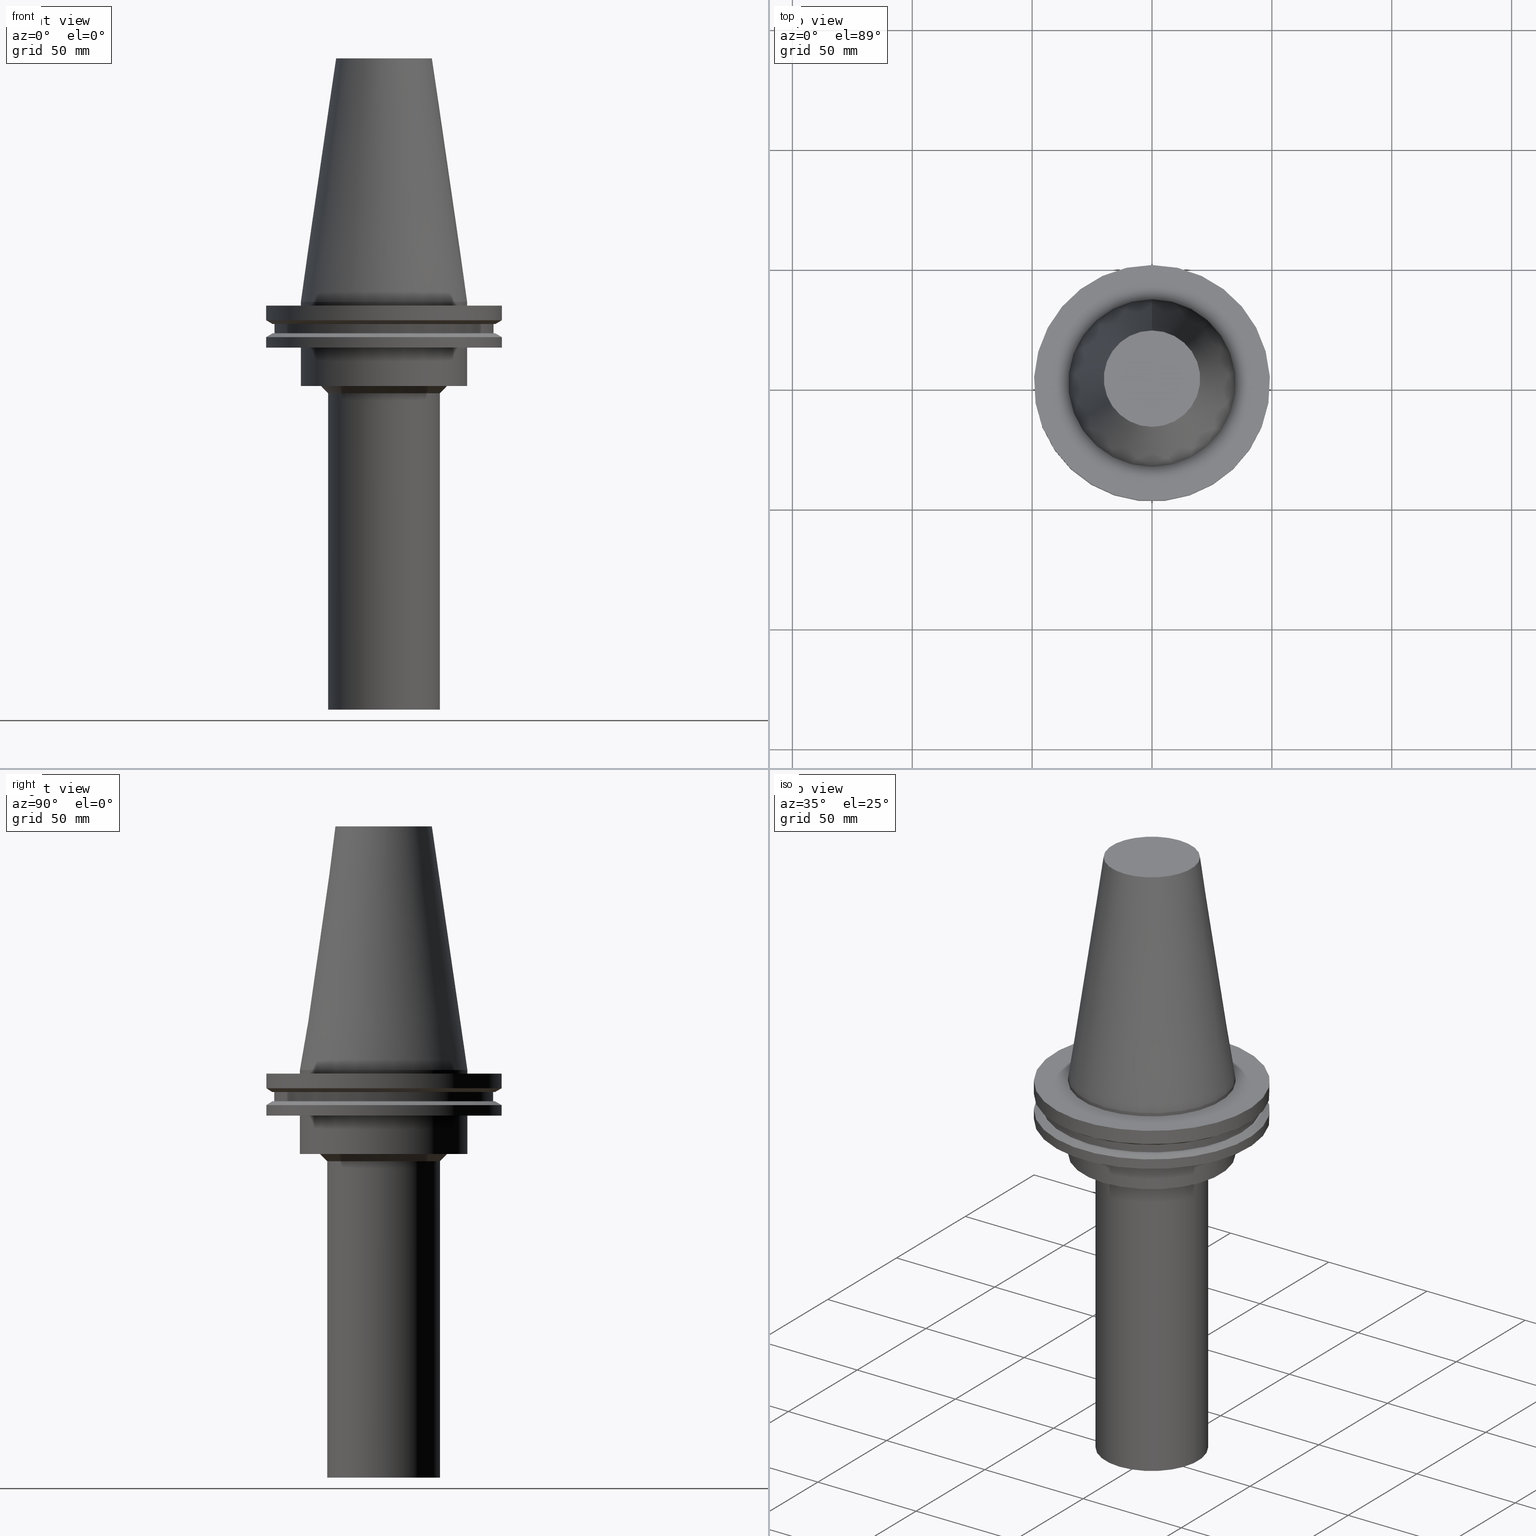
[diagram: canonical four-view strip — front | top / right | iso, engineering-drawing reading convention]
A machine part, canonical four-view strip (front | top / right | iso — engineering-drawing reading convention). The complete STEP part file that produces these views, byte-faithful:
ISO-10303-21;
HEADER;
FILE_DESCRIPTION((''),'1');
FILE_NAME('V:/90_\X2\53D65F9730C730FC30BF\X0\/00_\X2\6DE18DEF30C730FC30BF\X0\/ALL/BCV-BKUS\X2\FF76FF80FF9BFF78FF9E752852A05DE556F3\X0\201801/BCV50-SDF/BCV50-SDF36-47-170.stp','2018-02-01T01:11:27',(''),(''),'Spatial Interop R21 SP3','Kubotek KeyCreator 2011 V10.0.2 (22737)',' ');
FILE_SCHEMA(('automotive_design'));
ENDSEC;
DATA;
#1=MECHANICAL_DESIGN_GEOMETRIC_PRESENTATION_REPRESENTATION(' ',(#10,#11,#12,#13,#14,#15,#16,#17,#18,#19,#20,#21,#22,#23,#24,#25,#26,#27,#28,#29,#30,#31,#32,#33,#34,#35,#36,#37,#38,#39,#40,#41,#42,#43),#6);
#2=PRODUCT_DEFINITION_CONTEXT('',#44,'design');
#3=APPLICATION_PROTOCOL_DEFINITION('INTERNATIONAL STANDARD','automotive_design',1994,#44);
#4=PRODUCT_CATEGORY_RELATIONSHIP('NONE','NONE',#45,#46);
#5=SHAPE_DEFINITION_REPRESENTATION(#47,#48);
#6= (GEOMETRIC_REPRESENTATION_CONTEXT(3)GLOBAL_UNCERTAINTY_ASSIGNED_CONTEXT((#51))GLOBAL_UNIT_ASSIGNED_CONTEXT((#53,#54,#55))REPRESENTATION_CONTEXT('NONE','WORKSPACE'));
#10=STYLED_ITEM('',(#57,#58),#59);
#11=STYLED_ITEM('',(#60,#61),#62);
#12=STYLED_ITEM('',(#63,#64),#65);
#13=STYLED_ITEM('',(#66,#67),#68);
#14=STYLED_ITEM('',(#69),#70);
#15=STYLED_ITEM('',(#71),#72);
#16=STYLED_ITEM('',(#73),#74);
#17=STYLED_ITEM('',(#75,#76),#77);
#18=STYLED_ITEM('',(#78,#79),#80);
#19=STYLED_ITEM('',(#81,#82),#83);
#20=STYLED_ITEM('',(#84,#85),#86);
#21=STYLED_ITEM('',(#87),#88);
#22=STYLED_ITEM('',(#89,#90),#91);
#23=STYLED_ITEM('',(#92),#93);
#24=STYLED_ITEM('',(#94,#95),#96);
#25=STYLED_ITEM('',(#97),#98);
#26=STYLED_ITEM('',(#99,#100),#101);
#27=STYLED_ITEM('',(#102),#103);
#28=STYLED_ITEM('',(#104),#105);
#29=STYLED_ITEM('',(#106),#107);
#30=STYLED_ITEM('',(#108),#109);
#31=STYLED_ITEM('',(#110),#111);
#32=STYLED_ITEM('',(#112,#113),#114);
#33=STYLED_ITEM('',(#115),#116);
#34=STYLED_ITEM('',(#117),#118);
#35=STYLED_ITEM('',(#119,#120),#121);
#36=STYLED_ITEM('',(#122),#123);
#37=STYLED_ITEM('',(#124,#125),#126);
#38=STYLED_ITEM('',(#127,#128),#129);
#39=STYLED_ITEM('',(#130,#131),#132);
#40=STYLED_ITEM('',(#133,#134),#135);
#41=STYLED_ITEM('',(#136,#137),#138);
#42=STYLED_ITEM('',(#139),#140);
#43=STYLED_ITEM('',(#141),#142);
#44=APPLICATION_CONTEXT(' ');
#45=PRODUCT_CATEGORY('part','NONE');
#46=PRODUCT_RELATED_PRODUCT_CATEGORY('detail',' ',(#143));
#47=PRODUCT_DEFINITION_SHAPE('NONE','NONE',#144);
#48=ADVANCED_BREP_SHAPE_REPRESENTATION('Unnamed[1]',(#80,#145),#6);
#51=UNCERTAINTY_MEASURE_WITH_UNIT(LENGTH_MEASURE(1.0E-006),#53,'','');
#53= (CONVERSION_BASED_UNIT('MILLIMETRE',#148)LENGTH_UNIT()NAMED_UNIT(#151));
#54= (NAMED_UNIT(#153)PLANE_ANGLE_UNIT()SI_UNIT($,.RADIAN.));
#55= (NAMED_UNIT(#153)SOLID_ANGLE_UNIT()SI_UNIT($,.STERADIAN.));
#57=PRESENTATION_STYLE_ASSIGNMENT((#159));
#58=PRESENTATION_STYLE_ASSIGNMENT((#160));
#59=ADVANCED_FACE('Unnamed[1]',(#161,#162),#163,.T.);
#60=PRESENTATION_STYLE_ASSIGNMENT((#164));
#61=PRESENTATION_STYLE_ASSIGNMENT((#165));
#62=ADVANCED_FACE('Unnamed[1]',(#166,#167),#168,.T.);
#63=PRESENTATION_STYLE_ASSIGNMENT((#169));
#64=PRESENTATION_STYLE_ASSIGNMENT((#170));
#65=ADVANCED_FACE('Unnamed[1]',(#171,#172),#173,.T.);
#66=PRESENTATION_STYLE_ASSIGNMENT((#174));
#67=PRESENTATION_STYLE_ASSIGNMENT((#175));
#68=ADVANCED_FACE('Unnamed[1]',(#176,#177),#178,.T.);
#69=PRESENTATION_STYLE_ASSIGNMENT((#179));
#70=EDGE_CURVE('Unnamed[1]',#180,#180,#181,.T.);
#71=PRESENTATION_STYLE_ASSIGNMENT((#182));
#72=EDGE_CURVE('Unnamed[1]',#183,#183,#184,.T.);
#73=PRESENTATION_STYLE_ASSIGNMENT((#185));
#74=EDGE_CURVE('Unnamed[1]',#186,#186,#187,.T.);
#75=PRESENTATION_STYLE_ASSIGNMENT((#188));
#76=PRESENTATION_STYLE_ASSIGNMENT((#189));
#77=ADVANCED_FACE('Unnamed[1]',(#190,#191),#192,.T.);
#78=PRESENTATION_STYLE_ASSIGNMENT((#193));
#79=PRESENTATION_STYLE_ASSIGNMENT((#194));
#80=MANIFOLD_SOLID_BREP('Unnamed[1]',#195);
#81=PRESENTATION_STYLE_ASSIGNMENT((#196));
#82=PRESENTATION_STYLE_ASSIGNMENT((#197));
#83=ADVANCED_FACE('Unnamed[1]',(#198),#199,.T.);
#84=PRESENTATION_STYLE_ASSIGNMENT((#200));
#85=PRESENTATION_STYLE_ASSIGNMENT((#201));
#86=ADVANCED_FACE('Unnamed[1]',(#202,#203),#204,.T.);
#87=PRESENTATION_STYLE_ASSIGNMENT((#205));
#88=EDGE_CURVE('Unnamed[1]',#206,#206,#207,.T.);
#89=PRESENTATION_STYLE_ASSIGNMENT((#208));
#90=PRESENTATION_STYLE_ASSIGNMENT((#209));
#91=ADVANCED_FACE('Unnamed[1]',(#210,#211),#212,.T.);
#92=PRESENTATION_STYLE_ASSIGNMENT((#213));
#93=EDGE_CURVE('Unnamed[1]',#214,#214,#215,.T.);
#94=PRESENTATION_STYLE_ASSIGNMENT((#216));
#95=PRESENTATION_STYLE_ASSIGNMENT((#217));
#96=ADVANCED_FACE('Unnamed[1]',(#218,#219),#220,.T.);
#97=PRESENTATION_STYLE_ASSIGNMENT((#221));
#98=EDGE_CURVE('Unnamed[1]',#222,#222,#223,.T.);
#99=PRESENTATION_STYLE_ASSIGNMENT((#224));
#100=PRESENTATION_STYLE_ASSIGNMENT((#225));
#101=ADVANCED_FACE('Unnamed[1]',(#226,#227),#228,.T.);
#102=PRESENTATION_STYLE_ASSIGNMENT((#229));
#103=EDGE_CURVE('Unnamed[1]',#230,#230,#231,.T.);
#104=PRESENTATION_STYLE_ASSIGNMENT((#232));
#105=EDGE_CURVE('Unnamed[1]',#233,#233,#234,.T.);
#106=PRESENTATION_STYLE_ASSIGNMENT((#235));
#107=EDGE_CURVE('Unnamed[1]',#236,#236,#237,.T.);
#108=PRESENTATION_STYLE_ASSIGNMENT((#238));
#109=EDGE_CURVE('Unnamed[1]',#239,#239,#240,.T.);
#110=PRESENTATION_STYLE_ASSIGNMENT((#241));
#111=EDGE_CURVE('Unnamed[1]',#242,#242,#243,.T.);
#112=PRESENTATION_STYLE_ASSIGNMENT((#244));
#113=PRESENTATION_STYLE_ASSIGNMENT((#245));
#114=ADVANCED_FACE('Unnamed[1]',(#246,#247),#248,.T.);
#115=PRESENTATION_STYLE_ASSIGNMENT((#249));
#116=EDGE_CURVE('Unnamed[1]',#250,#250,#251,.T.);
#117=PRESENTATION_STYLE_ASSIGNMENT((#252));
#118=EDGE_CURVE('Unnamed[1]',#253,#253,#254,.T.);
#119=PRESENTATION_STYLE_ASSIGNMENT((#255));
#120=PRESENTATION_STYLE_ASSIGNMENT((#256));
#121=ADVANCED_FACE('Unnamed[1]',(#257,#258),#259,.T.);
#122=PRESENTATION_STYLE_ASSIGNMENT((#260));
#123=EDGE_CURVE('Unnamed[1]',#261,#261,#262,.T.);
#124=PRESENTATION_STYLE_ASSIGNMENT((#263));
#125=PRESENTATION_STYLE_ASSIGNMENT((#264));
#126=ADVANCED_FACE('Unnamed[1]',(#265),#266,.T.);
#127=PRESENTATION_STYLE_ASSIGNMENT((#267));
#128=PRESENTATION_STYLE_ASSIGNMENT((#268));
#129=ADVANCED_FACE('Unnamed[1]',(#269,#270),#271,.T.);
#130=PRESENTATION_STYLE_ASSIGNMENT((#272));
#131=PRESENTATION_STYLE_ASSIGNMENT((#273));
#132=ADVANCED_FACE('Unnamed[1]',(#274,#275),#276,.T.);
#133=PRESENTATION_STYLE_ASSIGNMENT((#277));
#134=PRESENTATION_STYLE_ASSIGNMENT((#278));
#135=ADVANCED_FACE('Unnamed[1]',(#279,#280),#281,.T.);
#136=PRESENTATION_STYLE_ASSIGNMENT((#282));
#137=PRESENTATION_STYLE_ASSIGNMENT((#283));
#138=ADVANCED_FACE('Unnamed[1]',(#284,#285),#286,.T.);
#139=PRESENTATION_STYLE_ASSIGNMENT((#287));
#140=EDGE_CURVE('Unnamed[1]',#288,#288,#289,.T.);
#141=PRESENTATION_STYLE_ASSIGNMENT((#290));
#142=EDGE_CURVE('Unnamed[1]',#291,#291,#292,.T.);
#143=PRODUCT('Unnamed[1]','Unnamed[1]','PART-Unnamed[1]-DESC',(#293));
#144=PRODUCT_DEFINITION('NONE','NONE',#294,#2);
#145=AXIS2_PLACEMENT_3D('',#295,#296,#297);
#148=LENGTH_MEASURE_WITH_UNIT(LENGTH_MEASURE(1.0),#298);
#151=DIMENSIONAL_EXPONENTS(1.0,0.0,0.0,0.0,0.0,0.0,0.0);
#153=DIMENSIONAL_EXPONENTS(0.0,0.0,0.0,0.0,0.0,0.0,0.0);
#159=SURFACE_STYLE_USAGE(.BOTH.,#299);
#160=CURVE_STYLE('',#300,POSITIVE_LENGTH_MEASURE(1000.0),#301);
#161=FACE_BOUND('',#302,.T.);
#162=FACE_BOUND('',#303,.T.);
#163=CONICAL_SURFACE('',#304,27.5166666666667,0.144812498238939);
#164=SURFACE_STYLE_USAGE(.BOTH.,#305);
#165=CURVE_STYLE('',#306,POSITIVE_LENGTH_MEASURE(1000.0),#307);
#166=FACE_BOUND('',#308,.T.);
#167=FACE_BOUND('',#309,.T.);
#168=CYLINDRICAL_SURFACE('',#310,49.2125);
#169=SURFACE_STYLE_USAGE(.BOTH.,#311);
#170=CURVE_STYLE('',#312,POSITIVE_LENGTH_MEASURE(1000.0),#313);
#171=FACE_OUTER_BOUND('',#314,.T.);
#172=FACE_BOUND('',#315,.T.);
#173=PLANE('',#316);
#174=SURFACE_STYLE_USAGE(.BOTH.,#317);
#175=CURVE_STYLE('',#318,POSITIVE_LENGTH_MEASURE(1000.0),#319);
#176=FACE_BOUND('',#320,.T.);
#177=FACE_BOUND('',#321,.T.);
#178=CYLINDRICAL_SURFACE('',#322,49.2124999999999);
#179=CURVE_STYLE('',#323,POSITIVE_LENGTH_MEASURE(1000.0),#324);
#180=VERTEX_POINT('',#325);
#181=CIRCLE('',#326,20.1083333333333);
#182=CURVE_STYLE('',#327,POSITIVE_LENGTH_MEASURE(1000.0),#328);
#183=VERTEX_POINT('',#329);
#184=CIRCLE('',#330,49.2125000000001);
#185=CURVE_STYLE('',#331,POSITIVE_LENGTH_MEASURE(1000.0),#332);
#186=VERTEX_POINT('',#333);
#187=CIRCLE('',#334,34.925);
#188=SURFACE_STYLE_USAGE(.BOTH.,#335);
#189=CURVE_STYLE('',#336,POSITIVE_LENGTH_MEASURE(1000.0),#337);
#190=FACE_BOUND('',#338,.T.);
#191=FACE_OUTER_BOUND('',#339,.T.);
#192=PLANE('',#340);
#193=SURFACE_STYLE_USAGE(.BOTH.,#341);
#194=CURVE_STYLE('',#342,POSITIVE_LENGTH_MEASURE(1000.0),#343);
#195=CLOSED_SHELL('',(#126,#59,#135,#114,#62,#91,#77,#101,#65,#96,#68,#129,#138,#132,#86,#121,#83));
#196=SURFACE_STYLE_USAGE(.BOTH.,#344);
#197=CURVE_STYLE('',#345,POSITIVE_LENGTH_MEASURE(1000.0),#346);
#198=FACE_OUTER_BOUND('',#347,.T.);
#199=PLANE('',#348);
#200=SURFACE_STYLE_USAGE(.BOTH.,#349);
#201=CURVE_STYLE('',#350,POSITIVE_LENGTH_MEASURE(1000.0),#351);
#202=FACE_BOUND('',#352,.T.);
#203=FACE_BOUND('',#353,.T.);
#204=CONICAL_SURFACE('',#354,25.0,0.78539816339745);
#205=CURVE_STYLE('',#355,POSITIVE_LENGTH_MEASURE(1000.0),#356);
#206=VERTEX_POINT('',#357);
#207=CIRCLE('',#358,49.2124999999999);
#208=SURFACE_STYLE_USAGE(.BOTH.,#359);
#209=CURVE_STYLE('',#360,POSITIVE_LENGTH_MEASURE(1000.0),#361);
#210=FACE_BOUND('',#362,.T.);
#211=FACE_BOUND('',#363,.T.);
#212=CONICAL_SURFACE('',#364,47.822529226926,1.04719755119663);
#213=CURVE_STYLE('',#365,POSITIVE_LENGTH_MEASURE(1000.0),#366);
#214=VERTEX_POINT('',#367);
#215=CIRCLE('',#368,46.432558453852);
#216=SURFACE_STYLE_USAGE(.BOTH.,#369);
#217=CURVE_STYLE('',#370,POSITIVE_LENGTH_MEASURE(1000.0),#371);
#218=FACE_BOUND('',#372,.T.);
#219=FACE_BOUND('',#373,.T.);
#220=CONICAL_SURFACE('',#374,47.8225292269259,1.04719755119659);
#221=CURVE_STYLE('',#375,POSITIVE_LENGTH_MEASURE(1000.0),#376);
#222=VERTEX_POINT('',#377);
#223=CIRCLE('',#378,34.925);
#224=SURFACE_STYLE_USAGE(.BOTH.,#379);
#225=CURVE_STYLE('',#380,POSITIVE_LENGTH_MEASURE(1000.0),#381);
#226=FACE_BOUND('',#382,.T.);
#227=FACE_BOUND('',#383,.T.);
#228=CYLINDRICAL_SURFACE('',#384,45.6449999999999);
#229=CURVE_STYLE('',#385,POSITIVE_LENGTH_MEASURE(1000.0),#386);
#230=VERTEX_POINT('',#387);
#231=CIRCLE('',#388,49.2124999999999);
#232=CURVE_STYLE('',#389,POSITIVE_LENGTH_MEASURE(1000.0),#390);
#233=VERTEX_POINT('',#391);
#234=CIRCLE('',#392,49.2124999999999);
#235=CURVE_STYLE('',#393,POSITIVE_LENGTH_MEASURE(1000.0),#394);
#236=VERTEX_POINT('',#395);
#237=CIRCLE('',#396,46.4325584538519);
#238=CURVE_STYLE('',#397,POSITIVE_LENGTH_MEASURE(1000.0),#398);
#239=VERTEX_POINT('',#399);
#240=CIRCLE('',#400,34.925);
#241=CURVE_STYLE('',#401,POSITIVE_LENGTH_MEASURE(1000.0),#402);
#242=VERTEX_POINT('',#403);
#243=CIRCLE('',#404,34.925);
#244=SURFACE_STYLE_USAGE(.BOTH.,#405);
#245=CURVE_STYLE('',#406,POSITIVE_LENGTH_MEASURE(1000.0),#407);
#246=FACE_OUTER_BOUND('',#408,.T.);
#247=FACE_BOUND('',#409,.T.);
#248=PLANE('',#410);
#249=CURVE_STYLE('',#411,POSITIVE_LENGTH_MEASURE(1000.0),#412);
#250=VERTEX_POINT('',#413);
#251=CIRCLE('',#414,45.6449999999999);
#252=CURVE_STYLE('',#415,POSITIVE_LENGTH_MEASURE(1000.0),#416);
#253=VERTEX_POINT('',#417);
#254=CIRCLE('',#418,26.5);
#255=SURFACE_STYLE_USAGE(.BOTH.,#419);
#256=CURVE_STYLE('',#420,POSITIVE_LENGTH_MEASURE(1000.0),#421);
#257=FACE_BOUND('',#422,.T.);
#258=FACE_BOUND('',#423,.T.);
#259=CYLINDRICAL_SURFACE('',#424,23.5000000000002);
#260=CURVE_STYLE('',#425,POSITIVE_LENGTH_MEASURE(1000.0),#426);
#261=VERTEX_POINT('',#427);
#262=CIRCLE('',#428,23.5000000000005);
#263=SURFACE_STYLE_USAGE(.BOTH.,#429);
#264=CURVE_STYLE('',#430,POSITIVE_LENGTH_MEASURE(1000.0),#431);
#265=FACE_OUTER_BOUND('',#432,.T.);
#266=PLANE('',#433);
#267=SURFACE_STYLE_USAGE(.BOTH.,#434);
#268=CURVE_STYLE('',#435,POSITIVE_LENGTH_MEASURE(1000.0),#436);
#269=FACE_BOUND('',#437,.T.);
#270=FACE_OUTER_BOUND('',#438,.T.);
#271=PLANE('',#439);
#272=SURFACE_STYLE_USAGE(.BOTH.,#440);
#273=CURVE_STYLE('',#441,POSITIVE_LENGTH_MEASURE(1000.0),#442);
#274=FACE_BOUND('',#443,.T.);
#275=FACE_OUTER_BOUND('',#444,.T.);
#276=PLANE('',#445);
#277=SURFACE_STYLE_USAGE(.BOTH.,#446);
#278=CURVE_STYLE('',#447,POSITIVE_LENGTH_MEASURE(1000.0),#448);
#279=FACE_BOUND('',#449,.T.);
#280=FACE_BOUND('',#450,.T.);
#281=CYLINDRICAL_SURFACE('',#451,34.925);
#282=SURFACE_STYLE_USAGE(.BOTH.,#452);
#283=CURVE_STYLE('',#453,POSITIVE_LENGTH_MEASURE(1000.0),#454);
#284=FACE_BOUND('',#455,.T.);
#285=FACE_BOUND('',#456,.T.);
#286=CYLINDRICAL_SURFACE('',#457,34.925);
#287=CURVE_STYLE('',#458,POSITIVE_LENGTH_MEASURE(1000.0),#459);
#288=VERTEX_POINT('',#460);
#289=CIRCLE('',#461,45.6449999999999);
#290=CURVE_STYLE('',#462,POSITIVE_LENGTH_MEASURE(1000.0),#463);
#291=VERTEX_POINT('',#464);
#292=CIRCLE('',#465,23.5);
#293=PRODUCT_CONTEXT('',#44,'mechanical');
#294=PRODUCT_DEFINITION_FORMATION_WITH_SPECIFIED_SOURCE(' ','NONE',#143,.NOT_KNOWN.);
#295=CARTESIAN_POINT('',(0.0,0.0,0.0));
#296=DIRECTION('',(0.0,0.0,1.0));
#297=DIRECTION('',(1.0,0.0,0.0));
#298= (NAMED_UNIT(#151)LENGTH_UNIT()SI_UNIT(.MILLI.,.METRE.));
#299=SURFACE_SIDE_STYLE('',(#467));
#300=DRAUGHTING_PRE_DEFINED_CURVE_FONT('continuous');
#301=COLOUR_RGB('',0.0,1.0,0.0);
#302=EDGE_LOOP('',(#468));
#303=EDGE_LOOP('',(#469));
#304=AXIS2_PLACEMENT_3D('',#470,#471,#472);
#305=SURFACE_SIDE_STYLE('',(#473));
#306=DRAUGHTING_PRE_DEFINED_CURVE_FONT('continuous');
#307=COLOUR_RGB('',0.0,1.0,0.0);
#308=EDGE_LOOP('',(#474));
#309=EDGE_LOOP('',(#475));
#310=AXIS2_PLACEMENT_3D('',#476,#477,#478);
#311=SURFACE_SIDE_STYLE('',(#479));
#312=DRAUGHTING_PRE_DEFINED_CURVE_FONT('continuous');
#313=COLOUR_RGB('',0.0,1.0,0.0);
#314=EDGE_LOOP('',(#480));
#315=EDGE_LOOP('',(#481));
#316=AXIS2_PLACEMENT_3D('',#482,#483,#484);
#317=SURFACE_SIDE_STYLE('',(#485));
#318=DRAUGHTING_PRE_DEFINED_CURVE_FONT('continuous');
#319=COLOUR_RGB('',0.0,1.0,0.0);
#320=EDGE_LOOP('',(#486));
#321=EDGE_LOOP('',(#487));
#322=AXIS2_PLACEMENT_3D('',#488,#489,#490);
#323=DRAUGHTING_PRE_DEFINED_CURVE_FONT('continuous');
#324=COLOUR_RGB('',0.0,1.0,0.0);
#325=CARTESIAN_POINT('',(-6.22120573966855E-015,20.1083333333332,101.6));
#326=AXIS2_PLACEMENT_3D('',#491,#492,#493);
#327=DRAUGHTING_PRE_DEFINED_CURVE_FONT('continuous');
#328=COLOUR_RGB('',0.0,1.0,0.0);
#329=CARTESIAN_POINT('',(4.65059621976208E-016,49.2125,-7.59500000000002));
#330=AXIS2_PLACEMENT_3D('',#494,#495,#496);
#331=DRAUGHTING_PRE_DEFINED_CURVE_FONT('continuous');
#332=COLOUR_RGB('',0.0,1.0,0.0);
#333=CARTESIAN_POINT('',(4.82986938111671E-029,34.925,-7.9153078510529E-013));
#334=AXIS2_PLACEMENT_3D('',#497,#498,#499);
#335=SURFACE_SIDE_STYLE('',(#500));
#336=DRAUGHTING_PRE_DEFINED_CURVE_FONT('continuous');
#337=COLOUR_RGB('',0.0,1.0,0.0);
#338=EDGE_LOOP('',(#501));
#339=EDGE_LOOP('',(#502));
#340=AXIS2_PLACEMENT_3D('',#503,#504,#505);
#341=SURFACE_SIDE_STYLE('',(#506));
#342=DRAUGHTING_PRE_DEFINED_CURVE_FONT('continuous');
#343=COLOUR_RGB('',0.0,1.0,0.0);
#344=SURFACE_SIDE_STYLE('',(#507));
#345=DRAUGHTING_PRE_DEFINED_CURVE_FONT('continuous');
#346=COLOUR_RGB('',0.0,1.0,0.0);
#347=EDGE_LOOP('',(#508));
#348=AXIS2_PLACEMENT_3D('',#509,#510,#511);
#349=SURFACE_SIDE_STYLE('',(#512));
#350=DRAUGHTING_PRE_DEFINED_CURVE_FONT('continuous');
#351=COLOUR_RGB('',0.0,1.0,0.0);
#352=EDGE_LOOP('',(#513));
#353=EDGE_LOOP('',(#514));
#354=AXIS2_PLACEMENT_3D('',#515,#516,#517);
#355=DRAUGHTING_PRE_DEFINED_CURVE_FONT('continuous');
#356=COLOUR_RGB('',0.0,1.0,0.0);
#357=CARTESIAN_POINT('',(1.16647607618786E-015,49.2124999999999,-19.0500000000001));
#358=AXIS2_PLACEMENT_3D('',#518,#519,#520);
#359=SURFACE_SIDE_STYLE('',(#521));
#360=DRAUGHTING_PRE_DEFINED_CURVE_FONT('continuous');
#361=COLOUR_RGB('',0.0,1.0,0.0);
#362=EDGE_LOOP('',(#522));
#363=EDGE_LOOP('',(#523));
#364=AXIS2_PLACEMENT_3D('',#524,#525,#526);
#365=DRAUGHTING_PRE_DEFINED_CURVE_FONT('continuous');
#366=COLOUR_RGB('',0.0,1.0,0.0);
#367=CARTESIAN_POINT('',(5.63337527607778E-016,46.432558453852,-9.19999999999993));
#368=AXIS2_PLACEMENT_3D('',#527,#528,#529);
#369=SURFACE_SIDE_STYLE('',(#530));
#370=DRAUGHTING_PRE_DEFINED_CURVE_FONT('continuous');
#371=COLOUR_RGB('',0.0,1.0,0.0);
#372=EDGE_LOOP('',(#531));
#373=EDGE_LOOP('',(#532));
#374=AXIS2_PLACEMENT_3D('',#533,#534,#535);
#375=DRAUGHTING_PRE_DEFINED_CURVE_FONT('continuous');
#376=COLOUR_RGB('',0.0,1.0,0.0);
#377=CARTESIAN_POINT('',(1.16647607618786E-015,34.925,-19.0500000000001));
#378=AXIS2_PLACEMENT_3D('',#536,#537,#538);
#379=SURFACE_SIDE_STYLE('',(#539));
#380=DRAUGHTING_PRE_DEFINED_CURVE_FONT('continuous');
#381=COLOUR_RGB('',0.0,1.0,0.0);
#382=EDGE_LOOP('',(#540));
#383=EDGE_LOOP('',(#541));
#384=AXIS2_PLACEMENT_3D('',#542,#543,#544);
#385=DRAUGHTING_PRE_DEFINED_CURVE_FONT('continuous');
#386=COLOUR_RGB('',0.0,1.0,0.0);
#387=CARTESIAN_POINT('',(8.96747618675648E-016,49.2124999999999,-14.645));
#388=AXIS2_PLACEMENT_3D('',#545,#546,#547);
#389=DRAUGHTING_PRE_DEFINED_CURVE_FONT('continuous');
#390=COLOUR_RGB('',0.0,1.0,0.0);
#391=CARTESIAN_POINT('',(9.18485099360509E-017,49.2124999999999,-1.49999999999999));
#392=AXIS2_PLACEMENT_3D('',#548,#549,#550);
#393=DRAUGHTING_PRE_DEFINED_CURVE_FONT('continuous');
#394=COLOUR_RGB('',0.0,1.0,0.0);
#395=CARTESIAN_POINT('',(7.98469713044071E-016,46.4325584538519,-13.04));
#396=AXIS2_PLACEMENT_3D('',#551,#552,#553);
#397=DRAUGHTING_PRE_DEFINED_CURVE_FONT('continuous');
#398=COLOUR_RGB('',0.0,1.0,0.0);
#399=CARTESIAN_POINT('',(9.18485099360511E-017,34.925,-1.5));
#400=AXIS2_PLACEMENT_3D('',#554,#555,#556);
#401=DRAUGHTING_PRE_DEFINED_CURVE_FONT('continuous');
#402=COLOUR_RGB('',0.0,1.0,0.0);
#403=CARTESIAN_POINT('',(2.14619351550573E-015,34.925,-35.0499999999999));
#404=AXIS2_PLACEMENT_3D('',#557,#558,#559);
#405=SURFACE_SIDE_STYLE('',(#560));
#406=DRAUGHTING_PRE_DEFINED_CURVE_FONT('continuous');
#407=COLOUR_RGB('',0.0,1.0,0.0);
#408=EDGE_LOOP('',(#561));
#409=EDGE_LOOP('',(#562));
#410=AXIS2_PLACEMENT_3D('',#563,#564,#565);
#411=DRAUGHTING_PRE_DEFINED_CURVE_FONT('continuous');
#412=COLOUR_RGB('',0.0,1.0,0.0);
#413=CARTESIAN_POINT('',(7.98469713044071E-016,45.6449999999999,-13.04));
#414=AXIS2_PLACEMENT_3D('',#566,#567,#568);
#415=DRAUGHTING_PRE_DEFINED_CURVE_FONT('continuous');
#416=COLOUR_RGB('',0.0,1.0,0.0);
#417=CARTESIAN_POINT('',(2.14619351550573E-015,26.5,-35.0499999999999));
#418=AXIS2_PLACEMENT_3D('',#569,#570,#571);
#419=SURFACE_SIDE_STYLE('',(#572));
#420=DRAUGHTING_PRE_DEFINED_CURVE_FONT('continuous');
#421=COLOUR_RGB('',0.0,1.0,0.0);
#422=EDGE_LOOP('',(#573));
#423=EDGE_LOOP('',(#574));
#424=AXIS2_PLACEMENT_3D('',#575,#576,#577);
#425=DRAUGHTING_PRE_DEFINED_CURVE_FONT('continuous');
#426=COLOUR_RGB('',0.0,1.0,0.0);
#427=CARTESIAN_POINT('',(1.04094977927524E-014,23.5000000000005,-169.999999999999));
#428=AXIS2_PLACEMENT_3D('',#578,#579,#580);
#429=SURFACE_SIDE_STYLE('',(#581));
#430=DRAUGHTING_PRE_DEFINED_CURVE_FONT('continuous');
#431=COLOUR_RGB('',0.0,1.0,0.0);
#432=EDGE_LOOP('',(#582));
#433=AXIS2_PLACEMENT_3D('',#583,#584,#585);
#434=SURFACE_SIDE_STYLE('',(#586));
#435=DRAUGHTING_PRE_DEFINED_CURVE_FONT('continuous');
#436=COLOUR_RGB('',0.0,1.0,0.0);
#437=EDGE_LOOP('',(#587));
#438=EDGE_LOOP('',(#588));
#439=AXIS2_PLACEMENT_3D('',#589,#590,#591);
#440=SURFACE_SIDE_STYLE('',(#592));
#441=DRAUGHTING_PRE_DEFINED_CURVE_FONT('continuous');
#442=COLOUR_RGB('',0.0,1.0,0.0);
#443=EDGE_LOOP('',(#593));
#444=EDGE_LOOP('',(#594));
#445=AXIS2_PLACEMENT_3D('',#595,#596,#597);
#446=SURFACE_SIDE_STYLE('',(#598));
#447=DRAUGHTING_PRE_DEFINED_CURVE_FONT('continuous');
#448=COLOUR_RGB('',0.0,1.0,0.0);
#449=EDGE_LOOP('',(#599));
#450=EDGE_LOOP('',(#600));
#451=AXIS2_PLACEMENT_3D('',#601,#602,#603);
#452=SURFACE_SIDE_STYLE('',(#604));
#453=DRAUGHTING_PRE_DEFINED_CURVE_FONT('continuous');
#454=COLOUR_RGB('',0.0,1.0,0.0);
#455=EDGE_LOOP('',(#605));
#456=EDGE_LOOP('',(#606));
#457=AXIS2_PLACEMENT_3D('',#607,#608,#609);
#458=DRAUGHTING_PRE_DEFINED_CURVE_FONT('continuous');
#459=COLOUR_RGB('',0.0,1.0,0.0);
#460=CARTESIAN_POINT('',(5.63337527607778E-016,45.6449999999999,-9.19999999999993));
#461=AXIS2_PLACEMENT_3D('',#610,#611,#612);
#462=DRAUGHTING_PRE_DEFINED_CURVE_FONT('continuous');
#463=COLOUR_RGB('',0.0,1.0,0.0);
#464=CARTESIAN_POINT('',(2.32989053537784E-015,23.5,-38.05));
#465=AXIS2_PLACEMENT_3D('',#613,#614,#615);
#467=SURFACE_STYLE_FILL_AREA(#616);
#468=ORIENTED_EDGE('',*,*,#74,.F.);
#469=ORIENTED_EDGE('',*,*,#70,.T.);
#470=CARTESIAN_POINT('',(-3.11060286983425E-015,-4.33751371218211E-014,50.7999999999996));
#471=DIRECTION('',(6.12323399573677E-017,4.82717484294155E-016,-1.0));
#472=DIRECTION('',(-3.4385073832434E-032,1.0,4.82717484294155E-016));
#473=SURFACE_STYLE_FILL_AREA(#617);
#474=ORIENTED_EDGE('',*,*,#72,.F.);
#475=ORIENTED_EDGE('',*,*,#105,.T.);
#476=CARTESIAN_POINT('',(2.78454065956132E-016,-1.66579311598505E-014,-4.54750000000004));
#477=DIRECTION('',(6.12323399573677E-017,4.82717484294155E-016,-1.0));
#478=DIRECTION('',(-3.4385073832434E-032,1.0,4.82717484294155E-016));
#479=SURFACE_STYLE_FILL_AREA(#618);
#480=ORIENTED_EDGE('',*,*,#107,.F.);
#481=ORIENTED_EDGE('',*,*,#116,.T.);
#482=CARTESIAN_POINT('',(7.98469713044071E-016,46.0387792269259,-13.04));
#483=DIRECTION('',(-6.12323399573677E-017,-1.22464679914735E-016,1.0));
#484=DIRECTION('',(1.23259516440783E-032,-1.0,-1.22464679914735E-016));
#485=SURFACE_STYLE_FILL_AREA(#619);
#486=ORIENTED_EDGE('',*,*,#88,.F.);
#487=ORIENTED_EDGE('',*,*,#103,.T.);
#488=CARTESIAN_POINT('',(1.03161184743175E-015,-1.07205061030324E-014,-16.8475000000001));
#489=DIRECTION('',(6.12323399573676E-017,4.82717484294155E-016,-1.0));
#490=DIRECTION('',(-3.4385073832434E-032,1.0,4.82717484294155E-016));
#491=CARTESIAN_POINT('',(-6.22120573966855E-015,-6.78971853239644E-014,101.6));
#492=DIRECTION('',(6.12323399573677E-017,4.82717484294155E-016,-1.0));
#493=DIRECTION('',(-3.4385073832434E-032,1.0,4.82717484294155E-016));
#494=CARTESIAN_POINT('',(4.65059621976211E-016,-1.51868496264641E-014,-7.59500000000006));
#495=DIRECTION('',(6.12323399573676E-017,4.82717484294155E-016,-1.0));
#496=DIRECTION('',(-3.4385073832434E-032,1.0,4.82717484294155E-016));
#497=CARTESIAN_POINT('',(4.87291776723366E-029,-1.88530889196778E-014,-7.95807864051312E-013));
#498=DIRECTION('',(6.12323399573677E-017,4.82717484294155E-016,-1.0));
#499=DIRECTION('',(-3.4385073832434E-032,1.0,4.82717484294155E-016));
#500=SURFACE_STYLE_FILL_AREA(#620);
#501=ORIENTED_EDGE('',*,*,#140,.F.);
#502=ORIENTED_EDGE('',*,*,#93,.T.);
#503=CARTESIAN_POINT('',(5.63337527607778E-016,46.0387792269259,-9.19999999999993));
#504=DIRECTION('',(6.12323399573677E-017,1.22464679914735E-016,-1.0));
#505=DIRECTION('',(-1.23259516440783E-032,1.0,1.22464679914735E-016));
#506=SURFACE_STYLE_FILL_AREA(#621);
#507=SURFACE_STYLE_FILL_AREA(#622);
#508=ORIENTED_EDGE('',*,*,#123,.T.);
#509=CARTESIAN_POINT('',(1.04094977927524E-014,11.7500000000003,-169.999999999999));
#510=DIRECTION('',(6.12323399573677E-017,1.22464679914735E-016,-1.0));
#511=DIRECTION('',(-1.23259516440783E-032,1.0,1.22464679914735E-016));
#512=SURFACE_STYLE_FILL_AREA(#623);
#513=ORIENTED_EDGE('',*,*,#142,.F.);
#514=ORIENTED_EDGE('',*,*,#118,.T.);
#515=CARTESIAN_POINT('',(2.23804202544179E-015,-1.20976486872684E-015,-36.55));
#516=DIRECTION('',(-6.12323399573676E-017,-4.82717484294155E-016,1.0));
#517=DIRECTION('',(-3.4385073832434E-032,1.0,4.82717484294155E-016));
#518=CARTESIAN_POINT('',(1.16647607618786E-015,-9.65732084387448E-015,-19.0500000000001));
#519=DIRECTION('',(6.12323399573676E-017,4.82717484294155E-016,-1.0));
#520=DIRECTION('',(-3.4385073832434E-032,1.0,4.82717484294155E-016));
#521=SURFACE_STYLE_FILL_AREA(#624);
#522=ORIENTED_EDGE('',*,*,#93,.F.);
#523=ORIENTED_EDGE('',*,*,#72,.T.);
#524=CARTESIAN_POINT('',(5.14198574791995E-016,-1.4799468845318E-014,-8.39750000000001));
#525=DIRECTION('',(-6.12323399573677E-017,-4.82717484294155E-016,1.0));
#526=DIRECTION('',(-3.4385073832434E-032,1.0,4.82717484294155E-016));
#527=CARTESIAN_POINT('',(5.6333752760778E-016,-1.4412088064172E-014,-9.19999999999996));
#528=DIRECTION('',(6.12323399573677E-017,4.82717484294155E-016,-1.0));
#529=DIRECTION('',(-3.4385073832434E-032,1.0,4.82717484294155E-016));
#530=SURFACE_STYLE_FILL_AREA(#625);
#531=ORIENTED_EDGE('',*,*,#103,.F.);
#532=ORIENTED_EDGE('',*,*,#107,.T.);
#533=CARTESIAN_POINT('',(8.47608665859862E-016,-1.21710721433363E-014,-13.8425));
#534=DIRECTION('',(6.12323399573677E-017,4.82717484294155E-016,-1.0));
#535=DIRECTION('',(-3.4385073832434E-032,1.0,4.82717484294155E-016));
#536=CARTESIAN_POINT('',(1.16647607618786E-015,-9.6573208438745E-015,-19.0500000000001));
#537=DIRECTION('',(6.12323399573677E-017,4.82717484294155E-016,-1.0));
#538=DIRECTION('',(-3.4385073832434E-032,1.0,4.82717484294155E-016));
#539=SURFACE_STYLE_FILL_AREA(#626);
#540=ORIENTED_EDGE('',*,*,#116,.F.);
#541=ORIENTED_EDGE('',*,*,#140,.T.);
#542=CARTESIAN_POINT('',(6.80903620325927E-016,-1.34852704943272E-014,-11.12));
#543=DIRECTION('',(6.12323399573677E-017,4.82717484294155E-016,-1.0));
#544=DIRECTION('',(-3.4385073832434E-032,1.0,4.82717484294155E-016));
#545=CARTESIAN_POINT('',(8.9674761867565E-016,-1.17836913621903E-014,-14.645));
#546=DIRECTION('',(6.12323399573676E-017,4.82717484294155E-016,-1.0));
#547=DIRECTION('',(-3.4385073832434E-032,1.0,4.82717484294155E-016));
#548=CARTESIAN_POINT('',(9.18485099360532E-017,-1.81290126932369E-014,-1.50000000000003));
#549=DIRECTION('',(6.12323399573677E-017,4.82717484294155E-016,-1.0));
#550=DIRECTION('',(-3.4385073832434E-032,1.0,4.82717484294155E-016));
#551=CARTESIAN_POINT('',(7.98469713044074E-016,-1.25584529244824E-014,-13.04));
#552=DIRECTION('',(6.12323399573677E-017,4.82717484294155E-016,-1.0));
#553=DIRECTION('',(-3.4385073832434E-032,1.0,4.82717484294155E-016));
#554=CARTESIAN_POINT('',(9.18485099360515E-017,-1.81290126932369E-014,-1.5));
#555=DIRECTION('',(6.12323399573677E-017,4.82717484294155E-016,-1.0));
#556=DIRECTION('',(-3.4385073832434E-032,1.0,4.82717484294155E-016));
#557=CARTESIAN_POINT('',(2.14619351550573E-015,-1.93384109516807E-015,-35.05));
#558=DIRECTION('',(6.12323399573676E-017,4.82717484294155E-016,-1.0));
#559=DIRECTION('',(-3.4385073832434E-032,1.0,4.82717484294155E-016));
#560=SURFACE_STYLE_FILL_AREA(#627);
#561=ORIENTED_EDGE('',*,*,#105,.F.);
#562=ORIENTED_EDGE('',*,*,#109,.T.);
#563=CARTESIAN_POINT('',(9.1848509936051E-017,42.0687499999999,-1.49999999999999));
#564=DIRECTION('',(-6.12323399573677E-017,-1.22464679914735E-016,1.0));
#565=DIRECTION('',(1.23259516440783E-032,-1.0,-1.22464679914735E-016));
#566=CARTESIAN_POINT('',(7.98469713044074E-016,-1.25584529244824E-014,-13.04));
#567=DIRECTION('',(6.12323399573677E-017,4.82717484294155E-016,-1.0));
#568=DIRECTION('',(-3.4385073832434E-032,1.0,4.82717484294155E-016));
#569=CARTESIAN_POINT('',(2.14619351550573E-015,-1.93384109516807E-015,-35.05));
#570=DIRECTION('',(6.12323399573677E-017,4.82717484294155E-016,-1.0));
#571=DIRECTION('',(-3.4385073832434E-032,1.0,4.82717484294155E-016));
#572=SURFACE_STYLE_FILL_AREA(#628);
#573=ORIENTED_EDGE('',*,*,#123,.F.);
#574=ORIENTED_EDGE('',*,*,#142,.T.);
#575=CARTESIAN_POINT('',(6.36969416406514E-015,3.1361597384021E-014,-104.024999999999));
#576=DIRECTION('',(6.12323399573677E-017,4.82717484294155E-016,-1.0));
#577=DIRECTION('',(-3.4385073832434E-032,1.0,4.82717484294155E-016));
#578=CARTESIAN_POINT('',(1.04094977927524E-014,6.32088834103277E-014,-169.999999999999));
#579=DIRECTION('',(6.12323399573677E-017,4.82717484294155E-016,-1.0));
#580=DIRECTION('',(-3.4385073832434E-032,1.0,4.82717484294155E-016));
#581=SURFACE_STYLE_FILL_AREA(#629);
#582=ORIENTED_EDGE('',*,*,#70,.F.);
#583=CARTESIAN_POINT('',(-6.22120573966855E-015,10.0541666666666,101.6));
#584=DIRECTION('',(-6.12323399573677E-017,-1.22464679914735E-016,1.0));
#585=DIRECTION('',(1.23259516440783E-032,-1.0,-1.22464679914735E-016));
#586=SURFACE_STYLE_FILL_AREA(#630);
#587=ORIENTED_EDGE('',*,*,#98,.F.);
#588=ORIENTED_EDGE('',*,*,#88,.T.);
#589=CARTESIAN_POINT('',(1.16647607618786E-015,42.06875,-19.0500000000001));
#590=DIRECTION('',(6.12323399573677E-017,1.22464679914735E-016,-1.0));
#591=DIRECTION('',(-1.23259516440783E-032,1.0,1.22464679914735E-016));
#592=SURFACE_STYLE_FILL_AREA(#631);
#593=ORIENTED_EDGE('',*,*,#118,.F.);
#594=ORIENTED_EDGE('',*,*,#111,.T.);
#595=CARTESIAN_POINT('',(2.14619351550573E-015,30.7125,-35.0499999999999));
#596=DIRECTION('',(6.12323399573677E-017,1.22464679914735E-016,-1.0));
#597=DIRECTION('',(-1.23259516440783E-032,1.0,1.22464679914735E-016));
#598=SURFACE_STYLE_FILL_AREA(#632);
#599=ORIENTED_EDGE('',*,*,#109,.F.);
#600=ORIENTED_EDGE('',*,*,#74,.T.);
#601=CARTESIAN_POINT('',(4.59242549680501E-017,-1.84910508064574E-014,-0.750000000000398));
#602=DIRECTION('',(6.12323399573677E-017,4.82717484294155E-016,-1.0));
#603=DIRECTION('',(-3.4385073832434E-032,1.0,4.82717484294155E-016));
#604=SURFACE_STYLE_FILL_AREA(#633);
#605=ORIENTED_EDGE('',*,*,#111,.F.);
#606=ORIENTED_EDGE('',*,*,#98,.T.);
#607=CARTESIAN_POINT('',(1.6563347958468E-015,-5.79558096952128E-015,-27.05));
#608=DIRECTION('',(6.12323399573676E-017,4.82717484294155E-016,-1.0));
#609=DIRECTION('',(-3.4385073832434E-032,1.0,4.82717484294155E-016));
#610=CARTESIAN_POINT('',(5.6333752760778E-016,-1.4412088064172E-014,-9.19999999999996));
#611=DIRECTION('',(6.12323399573677E-017,4.82717484294155E-016,-1.0));
#612=DIRECTION('',(-3.4385073832434E-032,1.0,4.82717484294155E-016));
#613=CARTESIAN_POINT('',(2.32989053537784E-015,-4.856886422856E-016,-38.05));
#614=DIRECTION('',(6.12323399573677E-017,4.82717484294155E-016,-1.0));
#615=DIRECTION('',(-3.4385073832434E-032,1.0,4.82717484294155E-016));
#616=FILL_AREA_STYLE('',(#634));
#617=FILL_AREA_STYLE('',(#635));
#618=FILL_AREA_STYLE('',(#636));
#619=FILL_AREA_STYLE('',(#637));
#620=FILL_AREA_STYLE('',(#638));
#621=FILL_AREA_STYLE('',(#639));
#622=FILL_AREA_STYLE('',(#640));
#623=FILL_AREA_STYLE('',(#641));
#624=FILL_AREA_STYLE('',(#642));
#625=FILL_AREA_STYLE('',(#643));
#626=FILL_AREA_STYLE('',(#644));
#627=FILL_AREA_STYLE('',(#645));
#628=FILL_AREA_STYLE('',(#646));
#629=FILL_AREA_STYLE('',(#647));
#630=FILL_AREA_STYLE('',(#648));
#631=FILL_AREA_STYLE('',(#649));
#632=FILL_AREA_STYLE('',(#650));
#633=FILL_AREA_STYLE('',(#651));
#634=FILL_AREA_STYLE_COLOUR('',#652);
#635=FILL_AREA_STYLE_COLOUR('',#653);
#636=FILL_AREA_STYLE_COLOUR('',#654);
#637=FILL_AREA_STYLE_COLOUR('',#655);
#638=FILL_AREA_STYLE_COLOUR('',#656);
#639=FILL_AREA_STYLE_COLOUR('',#657);
#640=FILL_AREA_STYLE_COLOUR('',#658);
#641=FILL_AREA_STYLE_COLOUR('',#659);
#642=FILL_AREA_STYLE_COLOUR('',#660);
#643=FILL_AREA_STYLE_COLOUR('',#661);
#644=FILL_AREA_STYLE_COLOUR('',#662);
#645=FILL_AREA_STYLE_COLOUR('',#663);
#646=FILL_AREA_STYLE_COLOUR('',#664);
#647=FILL_AREA_STYLE_COLOUR('',#665);
#648=FILL_AREA_STYLE_COLOUR('',#666);
#649=FILL_AREA_STYLE_COLOUR('',#667);
#650=FILL_AREA_STYLE_COLOUR('',#668);
#651=FILL_AREA_STYLE_COLOUR('',#669);
#652=COLOUR_RGB('',0.0,1.0,0.0);
#653=COLOUR_RGB('',0.0,1.0,0.0);
#654=COLOUR_RGB('',0.0,1.0,0.0);
#655=COLOUR_RGB('',0.0,1.0,0.0);
#656=COLOUR_RGB('',0.0,1.0,0.0);
#657=COLOUR_RGB('',0.0,1.0,0.0);
#658=COLOUR_RGB('',0.0,1.0,0.0);
#659=COLOUR_RGB('',0.0,1.0,0.0);
#660=COLOUR_RGB('',0.0,1.0,0.0);
#661=COLOUR_RGB('',0.0,1.0,0.0);
#662=COLOUR_RGB('',0.0,1.0,0.0);
#663=COLOUR_RGB('',0.0,1.0,0.0);
#664=COLOUR_RGB('',0.0,1.0,0.0);
#665=COLOUR_RGB('',0.0,1.0,0.0);
#666=COLOUR_RGB('',0.0,1.0,0.0);
#667=COLOUR_RGB('',0.0,1.0,0.0);
#668=COLOUR_RGB('',0.0,1.0,0.0);
#669=COLOUR_RGB('',0.0,1.0,0.0);
ENDSEC;
END-ISO-10303-21;
